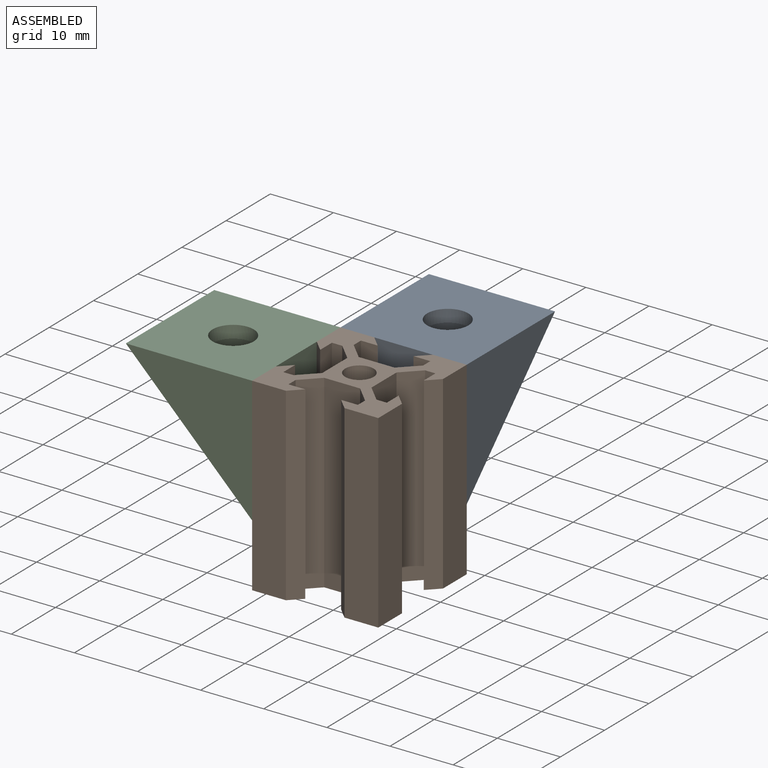
[diagram: assembled view]
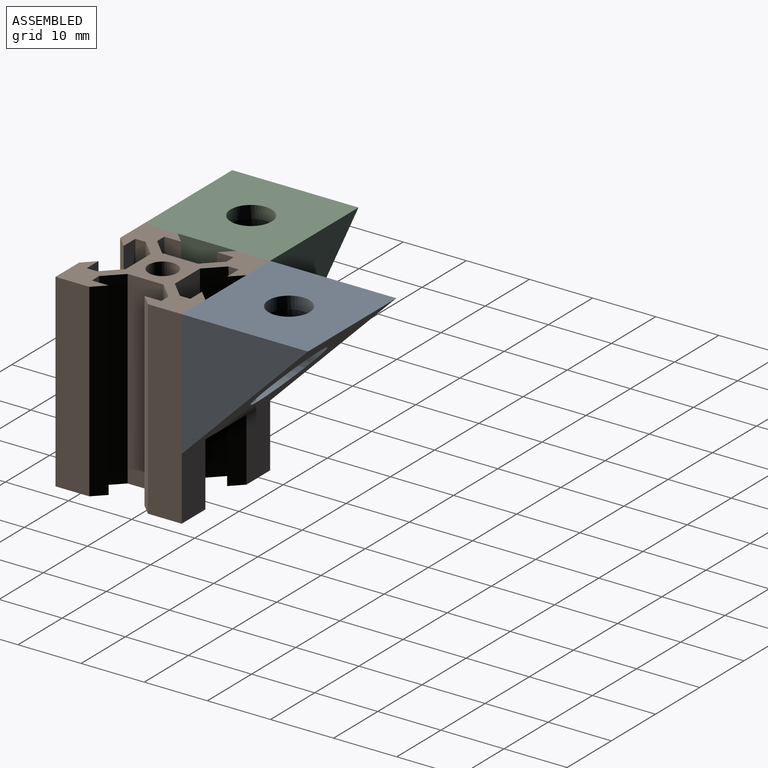
[diagram: assembled view, second angle]
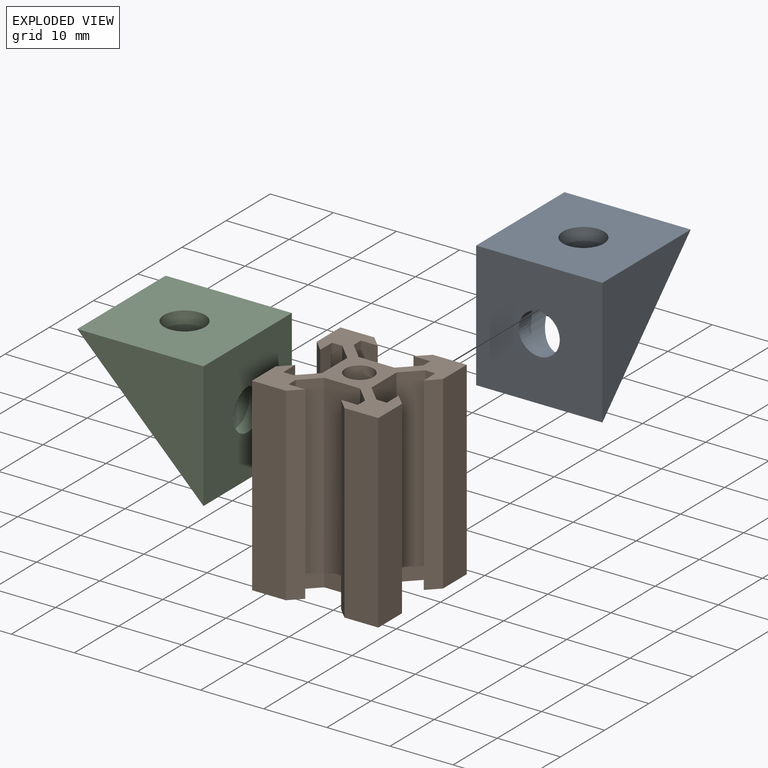
[diagram: exploded view]
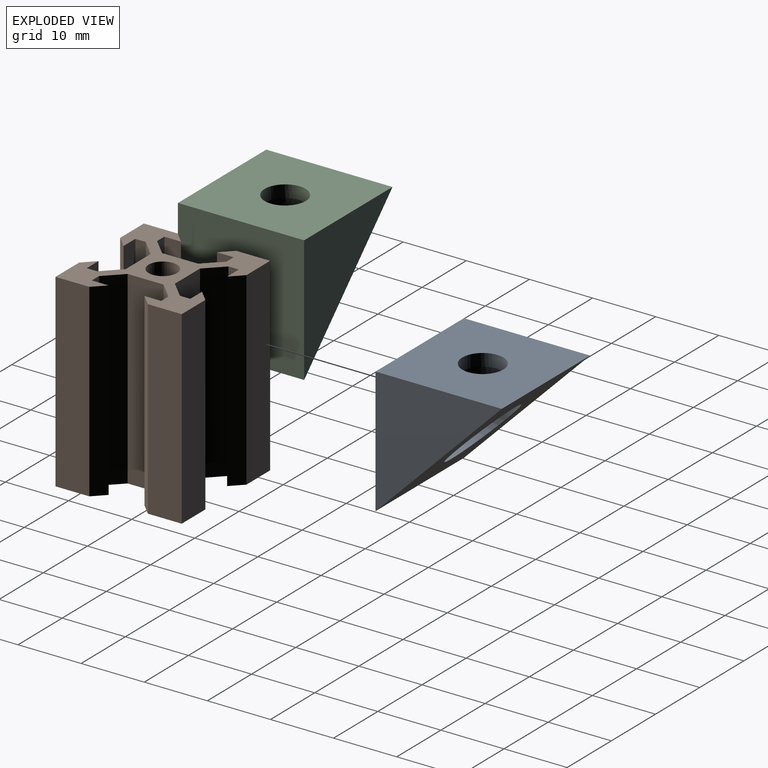
[diagram: exploded view, second angle]
ASSEMBLY  parts=3 mates=2
PART A: 11 faces, bbox 20x20x20 mm
  f0: plane 20x20mm, normal (1,0,0), area 366.8mm2, adj f1,f2,f3,f4,f5
  f1: plane 20x20mm, normal (-0.71,0,0.71), area 454.6mm2, adj f0,f2,f3,f4,f6,f9
  f2: plane 20x20mm, normal (0,0,-1), area 366.8mm2, adj f0,f1,f3,f4,f8
  f3: plane 20x20mm, normal (0,-1,0), area 200mm2, adj f0,f1,f2
  f4: plane 20x20mm, normal (0,1,0), area 200mm2, adj f0,f1,f2
  f5: cylinder r=3.25mm len=6.5mm, axis (1,0,0), area 40.8mm2, adj f0,f7
  f6: cylinder r=5mm len=10mm, axis (1,0,0), area 151.3mm2, adj f1,f7,f9
  f7: plane 10x10mm, normal (-1,0,0), area 45.4mm2, adj f5,f6
  f8: cylinder r=3.25mm len=6.5mm, axis (0,0,-1), area 40.8mm2, adj f2,f10
  f9: cylinder r=5mm len=10mm, axis (0,0,-1), area 151.3mm2, adj f1,f6,f10
  f10: plane 10x10mm, normal (0,0,1), area 45.4mm2, adj f8,f9
PART B: 47 faces, bbox 20x30x20 mm
  f0: plane 30x5.36mm, normal (0,0,-1), area 160.8mm2, adj f1,f43,f45,f46
  f1: plane 30x5.36mm, normal (1,0,0), area 160.8mm2, adj f0,f2,f45,f46
  f2: plane 30x1.8mm, normal (0.71,0,0.71), area 76.4mm2, adj f1,f3,f45,f46
  f3: plane 30x2.66mm, normal (-1,0,0), area 79.8mm2, adj f2,f4,f45,f46
  f4: plane 30x1.64mm, normal (0,0,1), area 49.2mm2, adj f3,f5,f45,f46
  f5: plane 30x2.66mm, normal (0.71,0,0.71), area 112.8mm2, adj f4,f6,f45,f46
  f6: plane 30x5.68mm, normal (1,0,0), area 170.4mm2, adj f5,f7,f45,f46
  f7: plane 30x2.66mm, normal (0.71,0,-0.71), area 112.8mm2, adj f6,f8,f45,f46
  f8: plane 30x1.64mm, normal (0,0,-1), area 49.2mm2, adj f7,f9,f45,f46
  f9: plane 30x2.66mm, normal (-1,0,0), area 79.8mm2, adj f8,f10,f45,f46
  f10: plane 30x1.8mm, normal (0.71,0,-0.71), area 76.4mm2, adj f9,f11,f45,f46
  f11: plane 30x5.36mm, normal (1,0,0), area 160.8mm2, adj f10,f12,f45,f46
  f12: plane 30x5.36mm, normal (0,0,1), area 160.8mm2, adj f11,f13,f45,f46
  f13: plane 30x1.8mm, normal (-0.71,0,0.71), area 76.4mm2, adj f12,f14,f45,f46
  f14: plane 30x2.66mm, normal (0,0,-1), area 79.8mm2, adj f13,f15,f45,f46
  f15: plane 30x1.64mm, normal (-1,0,0), area 49.2mm2, adj f14,f16,f45,f46
  f16: plane 30x2.66mm, normal (-0.71,0,0.71), area 112.8mm2, adj f15,f17,f45,f46
  f17: plane 30x5.68mm, normal (0,0,1), area 170.4mm2, adj f16,f18,f45,f46
  f18: plane 30x2.66mm, normal (0.71,0,0.71), area 112.8mm2, adj f17,f19,f45,f46
  f19: plane 30x1.64mm, normal (1,0,0), area 49.2mm2, adj f18,f20,f45,f46
  f20: plane 30x2.66mm, normal (0,0,-1), area 79.8mm2, adj f19,f21,f45,f46
  f21: plane 30x1.8mm, normal (0.71,0,0.71), area 76.4mm2, adj f20,f22,f45,f46
  f22: plane 30x5.36mm, normal (0,0,1), area 160.8mm2, adj f21,f23,f45,f46
  f23: plane 30x5.36mm, normal (-1,0,0), area 160.8mm2, adj f22,f24,f45,f46
  f24: plane 30x1.8mm, normal (-0.71,0,-0.71), area 76.4mm2, adj f23,f25,f45,f46
  f25: plane 30x2.66mm, normal (1,0,0), area 79.8mm2, adj f24,f26,f45,f46
  f26: plane 30x1.64mm, normal (0,0,-1), area 49.2mm2, adj f25,f27,f45,f46
  f27: plane 30x2.66mm, normal (-0.71,0,-0.71), area 112.8mm2, adj f26,f28,f45,f46
  f28: plane 30x5.68mm, normal (-1,0,0), area 170.4mm2, adj f27,f29,f45,f46
  f29: plane 30x2.66mm, normal (-0.71,0,0.71), area 112.8mm2, adj f28,f30,f45,f46
  f30: plane 30x1.64mm, normal (0,0,1), area 49.2mm2, adj f29,f31,f45,f46
  f31: plane 30x2.66mm, normal (1,0,0), area 79.8mm2, adj f30,f32,f45,f46
  f32: plane 30x1.8mm, normal (-0.71,0,0.71), area 76.4mm2, adj f31,f33,f45,f46
  f33: plane 30x5.36mm, normal (-1,0,0), area 160.8mm2, adj f32,f34,f45,f46
  f34: plane 30x5.36mm, normal (0,0,-1), area 160.8mm2, adj f33,f35,f45,f46
  f35: plane 30x1.8mm, normal (0.71,0,-0.71), area 76.4mm2, adj f34,f36,f45,f46
  f36: plane 30x2.66mm, normal (0,0,1), area 79.8mm2, adj f35,f37,f45,f46
  f37: plane 30x1.64mm, normal (1,0,0), area 49.2mm2, adj f36,f38,f45,f46
  f38: plane 30x2.66mm, normal (0.71,0,-0.71), area 112.8mm2, adj f37,f39,f45,f46
  f39: plane 30x5.68mm, normal (0,0,-1), area 170.4mm2, adj f38,f40,f45,f46
  f40: plane 30x2.66mm, normal (-0.71,0,-0.71), area 112.8mm2, adj f39,f41,f45,f46
  f41: plane 30x1.64mm, normal (-1,0,0), area 49.2mm2, adj f40,f42,f45,f46
  f42: plane 30x2.66mm, normal (0,0,1), area 79.8mm2, adj f41,f43,f45,f46
  f43: plane 30x1.8mm, normal (-0.71,0,-0.71), area 76.4mm2, adj f0,f42,f45,f46
  f44: cylinder r=2.25mm len=30mm, axis (0,1,0), area 424.1mm2, adj f45,f46
  f45: plane 20x20mm, normal (0,-1,0), area 169.4mm2, adj f0,f1,f2,f3,f4,f5,f6,f7
  f46: plane 20x20mm, normal (0,1,0), area 169.4mm2, adj f0,f1,f2,f3,f4,f5,f6,f7
PART C: same geometry as A
PLACE A rot(axis=(-0.58,-0.58,-0.58),120deg) t=(9.05,7.27,50.64)mm
PLACE B rot(axis=(0.58,-0.58,-0.58),120deg) t=(-0.95,-2.73,10.26)mm fixed
PLACE C rot(axis=(0,-1,0),90deg) t=(-10.95,7.27,50.64)mm
MATE fastened C.f2 <-> B.f22  axis (1,0,0) through (-10.95,7.27,10.26)mm
MATE fastened A.f2 <-> B.f23  axis (0,-1,0) through (-10.95,7.27,10.26)mm
